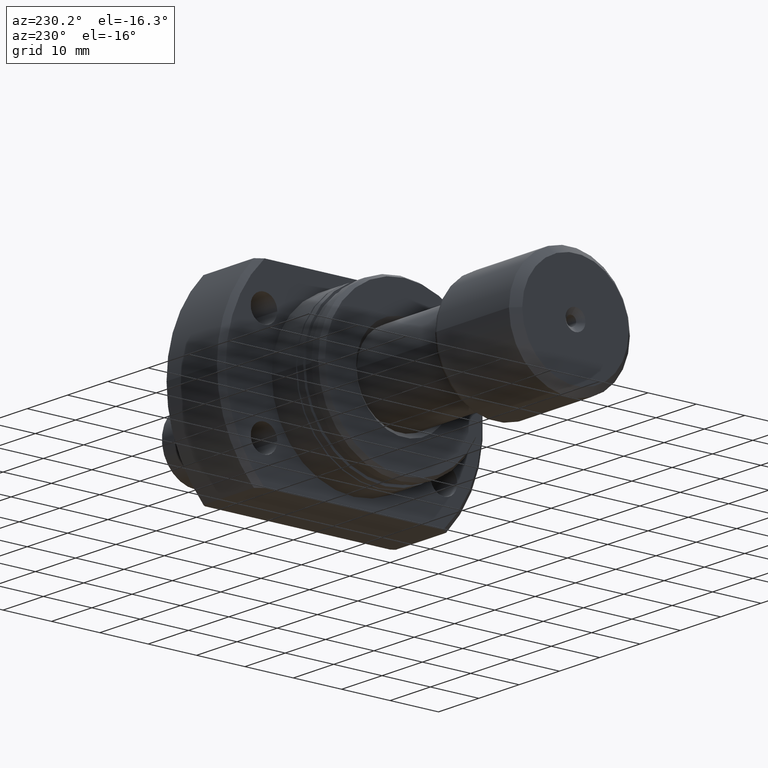
[diagram: clean part render]
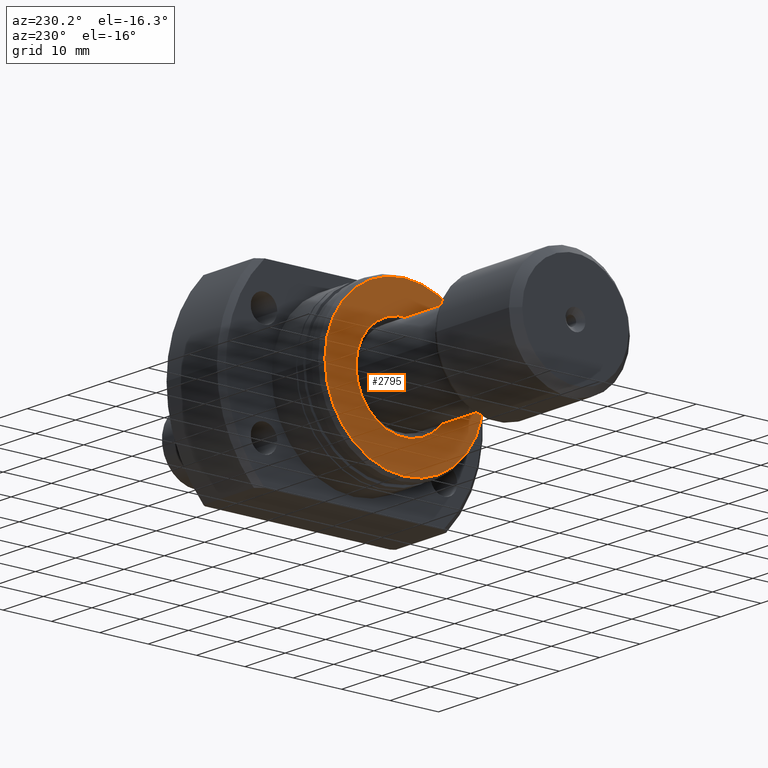
[diagram: same view with one face highlighted and labeled with its STEP entity id]
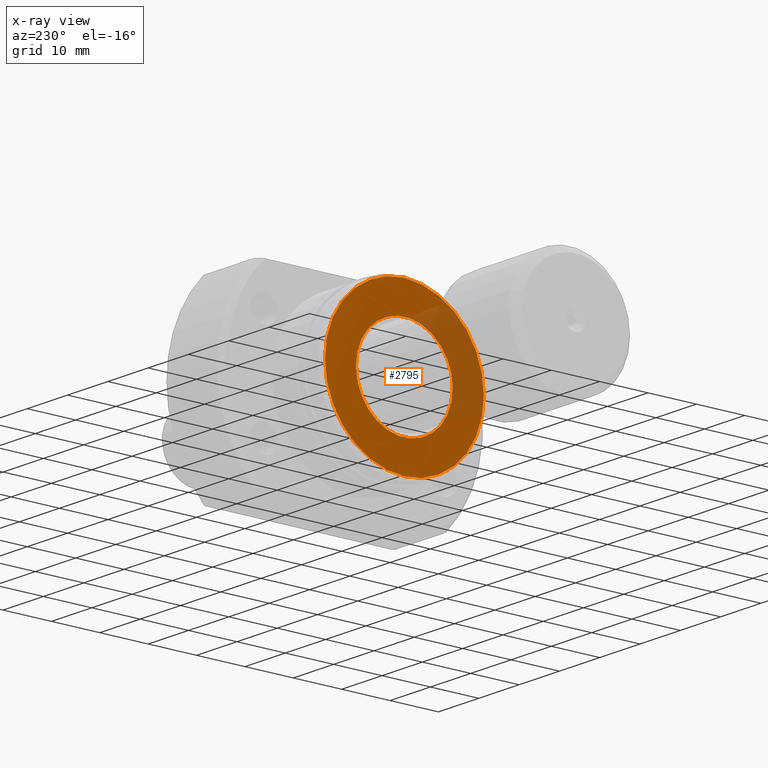
[diagram: x-ray of the same camera — body ghosted, the highlighted face saturated]
A machine part, auxiliary view. The second image highlights one B-rep face of the part: STEP entity #2795.
The next image is the same camera in x-ray: the body ghosted, the highlighted face saturated — about 24% of this face is hidden behind the body in this view.
In plain terms, the highlighted planar face has unit normal (1, 0, 0).
Its self-contained STEP definition (entity closure, byte-faithful):
#50 = DIRECTION ( 'NONE',  ( -9.242617352055507008E-18, 1.000000000000000000, 0.000000000000000000 ) ) ;
#114 = CARTESIAN_POINT ( 'NONE',  ( 9.297031376334609942E-16, 10.00000000000029310, 1.224646799147388952E-15 ) ) ;
#165 = PLANE ( 'NONE',  #1816 ) ;
#169 = ORIENTED_EDGE ( 'NONE', *, *, #1531, .T. ) ;
#216 = DIRECTION ( 'NONE',  ( 1.000000000000000000, 9.242617352055502386E-18, -0.000000000000000000 ) ) ;
#226 = CARTESIAN_POINT ( 'NONE',  ( 3.621235219322331921E-15, -16.42264973081037027, 2.046547050593003144E-15 ) ) ;
#258 = ORIENTED_EDGE ( 'NONE', *, *, #969, .T. ) ;
#324 = CIRCLE ( 'NONE', #2386, 16.42264973081037027 ) ;
#375 = EDGE_CURVE ( 'NONE', #1333, #868, #324, .T. ) ;
#402 = AXIS2_PLACEMENT_3D ( 'NONE', #3353, #762, #2298 ) ;
#638 = DIRECTION ( 'NONE',  ( 1.000000000000000000, 9.242617352055502386E-18, -0.000000000000000000 ) ) ;
#745 = ORIENTED_EDGE ( 'NONE', *, *, #2914, .F. ) ;
#762 = DIRECTION ( 'NONE',  ( 1.000000000000000000, 9.242617352055502386E-18, -0.000000000000000000 ) ) ;
#825 = CARTESIAN_POINT ( 'NONE',  ( 9.297031376334609942E-16, -9.999999999999717559, 0.000000000000000000 ) ) ;
#858 = EDGE_LOOP ( 'NONE', ( #745, #1718 ) ) ;
#868 = VERTEX_POINT ( 'NONE', #3345 ) ;
#969 = EDGE_CURVE ( 'NONE', #3096, #1316, #2579, .T. ) ;
#1316 = VERTEX_POINT ( 'NONE', #825 ) ;
#1333 = VERTEX_POINT ( 'NONE', #226 ) ;
#1352 = DIRECTION ( 'NONE',  ( -9.242617352055494682E-18, 1.000000000000000000, 0.000000000000000000 ) ) ;
#1406 = AXIS2_PLACEMENT_3D ( 'NONE', #2029, #638, #50 ) ;
#1494 = CARTESIAN_POINT ( 'NONE',  ( 9.297031376334609942E-16, 7.380088410503559366E-29, 0.000000000000000000 ) ) ;
#1531 = EDGE_CURVE ( 'NONE', #1316, #3096, #2822, .T. ) ;
#1718 = ORIENTED_EDGE ( 'NONE', *, *, #375, .F. ) ;
#1799 = DIRECTION ( 'NONE',  ( 1.000000000000000000, 9.242617352055502386E-18, -0.000000000000000000 ) ) ;
#1816 = AXIS2_PLACEMENT_3D ( 'NONE', #3337, #2702, #2435 ) ;
#1871 = FACE_BOUND ( 'NONE', #2812, .T. ) ;
#1876 = AXIS2_PLACEMENT_3D ( 'NONE', #1494, #1799, #2931 ) ;
#2029 = CARTESIAN_POINT ( 'NONE',  ( 9.297031376334609942E-16, 7.380088410503559366E-29, 0.000000000000000000 ) ) ;
#2214 = CARTESIAN_POINT ( 'NONE',  ( 3.469446951953614189E-15, 4.814824860968089633E-32, 0.000000000000000000 ) ) ;
#2298 = DIRECTION ( 'NONE',  ( -9.242617352055494682E-18, 1.000000000000000000, 0.000000000000000000 ) ) ;
#2386 = AXIS2_PLACEMENT_3D ( 'NONE', #2214, #216, #1352 ) ;
#2435 = DIRECTION ( 'NONE',  ( -9.242617352055502386E-18, 1.000000000000000000, 0.000000000000000000 ) ) ;
#2579 = CIRCLE ( 'NONE', #1406, 10.00000000000029310 ) ;
#2702 = DIRECTION ( 'NONE',  ( 1.000000000000000000, 9.242617352055502386E-18, -0.000000000000000000 ) ) ;
#2795 = ADVANCED_FACE ( 'NONE', ( #1871, #3642 ), #165, .F. ) ;
#2812 = EDGE_LOOP ( 'NONE', ( #169, #258 ) ) ;
#2822 = CIRCLE ( 'NONE', #1876, 10.00000000000029310 ) ;
#2914 = EDGE_CURVE ( 'NONE', #868, #1333, #2945, .T. ) ;
#2931 = DIRECTION ( 'NONE',  ( -9.242617352055507008E-18, 1.000000000000000000, 0.000000000000000000 ) ) ;
#2945 = CIRCLE ( 'NONE', #402, 16.42264973081037027 ) ;
#3096 = VERTEX_POINT ( 'NONE', #114 ) ;
#3337 = CARTESIAN_POINT ( 'NONE',  ( 9.297031376334383144E-16, 8.592890352151261741E-33, 0.000000000000000000 ) ) ;
#3345 = CARTESIAN_POINT ( 'NONE',  ( 3.317658684584896851E-15, 16.42264973081037027, 0.000000000000000000 ) ) ;
#3353 = CARTESIAN_POINT ( 'NONE',  ( 3.469446951953614189E-15, 4.814824860968089633E-32, 0.000000000000000000 ) ) ;
#3642 = FACE_OUTER_BOUND ( 'NONE', #858, .T. ) ;